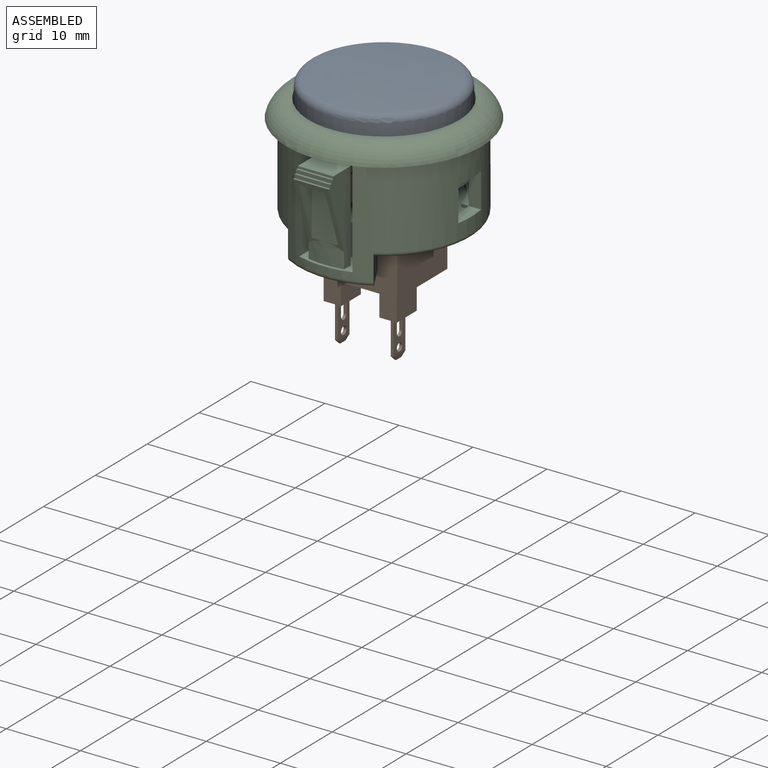
[diagram: assembled view]
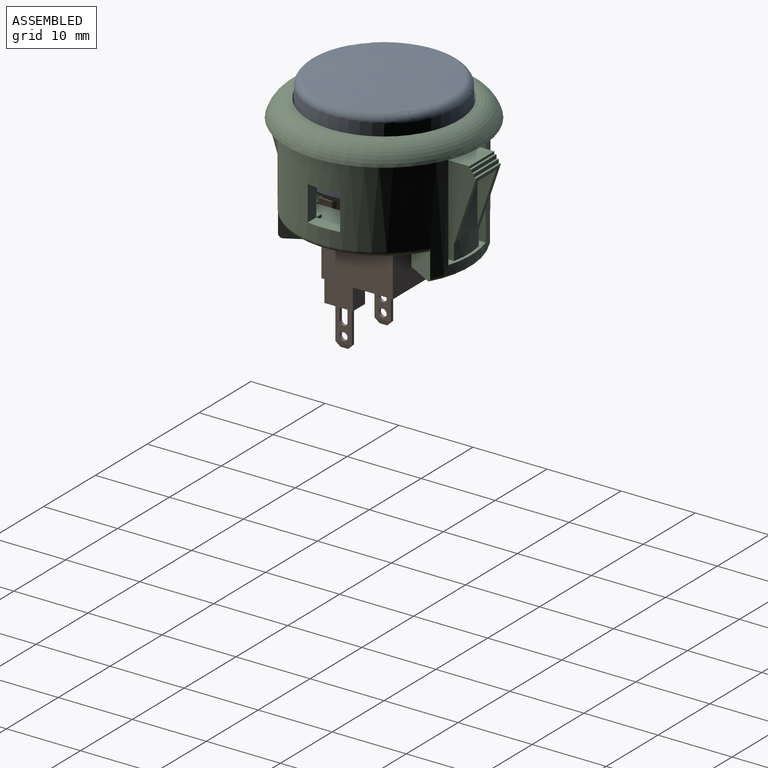
[diagram: assembled view, second angle]
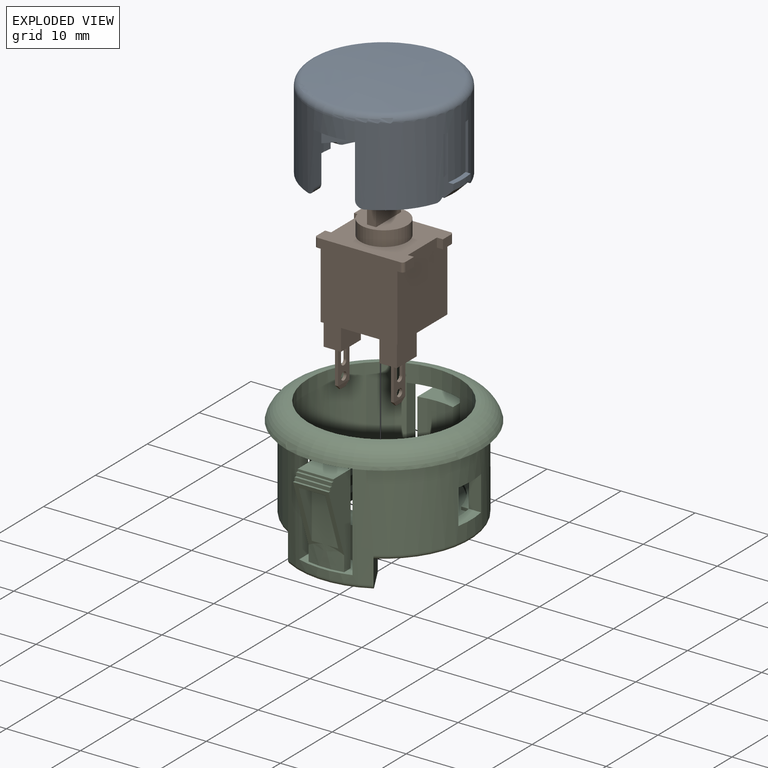
[diagram: exploded view]
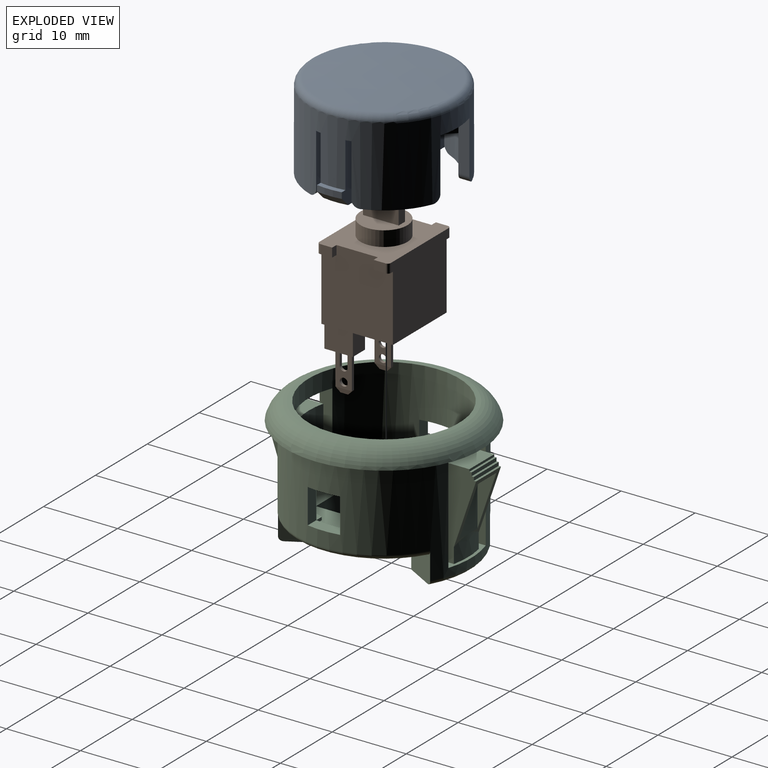
[diagram: exploded view, second angle]
ASSEMBLY  parts=3 mates=2
PART A: 68 faces, bbox 21.6x21.6x12.1 mm
  f0: sphere r=88.64mm, area 258.8mm2, adj f1
  f1: torus R=8.96mm, axis (0,0,-1), area 90.4mm2, adj f0,f2
  f2: cylinder r=9.98mm len=19.95mm, axis (0,0,-1), area 532.9mm2, adj f1,f20,f21,f23,f25,f26,f27,f28
  f3: cylinder r=8.55mm len=17.11mm, axis (0,0,-1), area 421.3mm2, adj f4,f5,f6,f7,f8,f9,f10,f11
  f4: plane 11.51x6.66mm, normal (0,0,-1), area 45.8mm2, adj f3,f8,f9,f50,f51,f52
  f5: plane 11.51x7.23mm, normal (0,0,-1), area 50.1mm2, adj f3,f10,f11,f51
  f6: plane 11.51x6.66mm, normal (0,0,-1), area 45.8mm2, adj f3,f12,f13,f50,f51,f53
  f7: plane 11.51x7.23mm, normal (0,0,-1), area 50.1mm2, adj f3,f14,f15,f50
  f8: plane 6.1x4.43mm, normal (0.71,0.71,0), area 38.2mm2, adj f3,f4,f16,f50
  f9: plane 6.1x4.43mm, normal (-0.71,0.71,0), area 38.2mm2, adj f3,f4,f19,f51
  f10: plane 6.1x5.01mm, normal (0.71,-0.71,0), area 43.2mm2, adj f3,f5,f19,f51
  f11: plane 6.1x5.01mm, normal (0.71,0.71,0), area 43.2mm2, adj f3,f5,f18,f51
  f12: plane 6.1x4.43mm, normal (-0.71,-0.71,0), area 38.2mm2, adj f3,f6,f18,f51
  f13: plane 6.1x4.43mm, normal (0.71,-0.71,0), area 38.2mm2, adj f3,f6,f17,f50
  f14: plane 6.1x5.01mm, normal (-0.71,0.71,0), area 43.2mm2, adj f3,f7,f17,f50
  f15: plane 6.1x5.01mm, normal (-0.71,-0.71,0), area 43.2mm2, adj f3,f7,f16,f50
  f16: plane 5.58x5.01mm, normal (0,0,-1), area 5.4mm2, adj f3,f8,f15,f50
  f17: plane 5.58x5.01mm, normal (0,0,-1), area 5.4mm2, adj f3,f13,f14,f50
  f18: plane 5.58x5.01mm, normal (0,0,-1), area 5.4mm2, adj f3,f11,f12,f51
  f19: plane 5.58x5.01mm, normal (0,0,-1), area 5.4mm2, adj f3,f9,f10,f51
  f20: plane 5.82x5.57mm, normal (0,0,-1), area 10.2mm2, adj f2,f3,f61,f67
  f21: plane 5.82x5.57mm, normal (0,0,-1), area 10.2mm2, adj f2,f3,f63,f66
  f22: plane 3.35x1.06mm, normal (0,0,-1), area 3mm2, adj f3,f29,f42,f48
  f23: plane 5.82x5.57mm, normal (0,0,-1), area 10.2mm2, adj f2,f3,f60,f64
  f24: plane 3.35x1.06mm, normal (0,0,-1), area 3mm2, adj f3,f27,f38,f49
  f25: plane 5.82x5.57mm, normal (0,0,-1), area 10.2mm2, adj f2,f3,f62,f65
  f26: plane 7.11x1.47mm, normal (0,-1,0), area 10.5mm2, adj f2,f3,f28,f62
  f27: plane 8.14x2.16mm, normal (0,1,0), area 12.4mm2, adj f2,f3,f24,f28,f44,f45,f49
  f28: plane 1.62x0.71mm, normal (0,0,-1), area 1mm2, adj f2,f3,f26,f27
  f29: plane 8.14x2.16mm, normal (0,1,0), area 12.4mm2, adj f2,f3,f22,f31,f46,f47,f48
  f30: plane 7.11x1.47mm, normal (0,-1,0), area 10.5mm2, adj f2,f3,f31,f60
  f31: plane 1.62x0.71mm, normal (0,0,-1), area 1mm2, adj f2,f3,f29,f30
  f32: plane 7.11x1.49mm, normal (-1,0,0), area 10.6mm2, adj f2,f3,f34,f64
  f33: plane 7.11x1.49mm, normal (1,0,0), area 10.6mm2, adj f2,f3,f34,f65
  f34: plane 5.59x1.89mm, normal (0,0,-1), area 8.1mm2, adj f2,f3,f32,f33
  f35: plane 7.11x1.49mm, normal (1,0,0), area 10.6mm2, adj f2,f3,f37,f66
  f36: plane 7.11x1.49mm, normal (-1,0,0), area 10.6mm2, adj f2,f3,f37,f67
  f37: plane 5.59x1.89mm, normal (0,0,-1), area 8.1mm2, adj f2,f3,f35,f36
  f38: plane 8.14x2.16mm, normal (0,-1,0), area 12.4mm2, adj f2,f3,f24,f40,f44,f45,f49
  f39: plane 7.11x1.47mm, normal (0,1,0), area 10.5mm2, adj f2,f3,f40,f63
  f40: plane 1.62x0.71mm, normal (0,0,-1), area 1mm2, adj f2,f3,f38,f39
  f41: plane 1.62x0.71mm, normal (0,0,-1), area 1mm2, adj f2,f3,f42,f43
  f42: plane 8.14x2.16mm, normal (0,-1,0), area 12.4mm2, adj f2,f3,f22,f41,f46,f47,f48
  f43: plane 7.11x1.47mm, normal (0,1,0), area 10.5mm2, adj f2,f3,f41,f61
  f44: cylinder r=10.67mm len=3.35mm, axis (0,0,-1), area 2.7mm2, adj f27,f38,f45,f49
  f45: plane 3.35x0.83mm, normal (0,0,1), area 2.3mm2, adj f2,f27,f38,f44
  f46: cylinder r=10.67mm len=3.35mm, axis (0,0,-1), area 2.7mm2, adj f29,f42,f47,f48
  f47: plane 3.35x0.83mm, normal (0,0,1), area 2.3mm2, adj f2,f29,f42,f46
  f48: cone r=9.45mm half-angle=45deg, axis (0,0,1), area 5.8mm2, adj f22,f29,f42,f46
  f49: cone r=9.45mm half-angle=45deg, axis (0,0,1), area 5.8mm2, adj f24,f27,f38,f44
  f50: plane 10.45x6.16mm, normal (-1,0,0), area 50.3mm2, adj f4,f6,f7,f8,f13,f14,f15,f16
  f51: plane 10.45x6.16mm, normal (1,0,0), area 50.3mm2, adj f4,f5,f6,f9,f10,f11,f12,f18
  f52: plane 10.45x2.64mm, normal (0,1,0), area 27.6mm2, adj f4,f50,f51,f54
  f53: plane 10.45x2.64mm, normal (0,-1,0), area 27.6mm2, adj f6,f50,f51,f54
  f54: plane 6.16x2.64mm, normal (0,0,-1), area 9.2mm2, adj f50,f51,f52,f53,f55,f56,f57,f58
  f55: plane 10.45x4.94mm, normal (-1,0,0), area 51.6mm2, adj f54,f56,f58,f59
  f56: plane 10.45x1.42mm, normal (0,-1,0), area 14.9mm2, adj f54,f55,f57,f59
  f57: plane 10.45x4.94mm, normal (1,0,0), area 51.6mm2, adj f54,f56,f58,f59
  f58: plane 10.45x1.42mm, normal (0,1,0), area 14.9mm2, adj f54,f55,f57,f59
  f59: plane 4.94x1.42mm, normal (0,0,-1), area 7mm2, adj f55,f56,f57,f58
  f60: cylinder r=1.02mm len=1.84mm, axis (-1,0,0), area 2.4mm2, adj f2,f3,f23,f30
  f61: cylinder r=1.02mm len=1.84mm, axis (1,0,0), area 2.4mm2, adj f2,f3,f20,f43
  f62: cylinder r=1.02mm len=1.84mm, axis (-1,0,0), area 2.4mm2, adj f2,f3,f25,f26
  f63: cylinder r=1.02mm len=1.84mm, axis (1,0,0), area 2.4mm2, adj f2,f3,f21,f39
  f64: cylinder r=1.02mm len=1.92mm, axis (0,1,0), area 2.4mm2, adj f2,f3,f23,f32
  f65: cylinder r=1.02mm len=1.92mm, axis (0,-1,0), area 2.4mm2, adj f2,f3,f25,f33
  f66: cylinder r=1.02mm len=1.92mm, axis (0,-1,0), area 2.4mm2, adj f2,f3,f21,f35
  f67: cylinder r=1.02mm len=1.92mm, axis (0,1,0), area 2.4mm2, adj f2,f3,f20,f36
PART B: 136 faces, bbox 12x23.9x9.7 mm
  f0: cylinder r=3.16mm len=6.32mm, axis (0,1,0), area 40.3mm2, adj f5,f6
  f1: cylinder r=0.53mm len=1.06mm, axis (1,0,0), area 1.3mm2, adj f10,f11
  f2: cylinder r=0.53mm len=1.06mm, axis (1,0,0), area 0.7mm2, adj f10,f11,f40,f41
  f3: cylinder r=0.53mm len=1.06mm, axis (-1,0,0), area 1.3mm2, adj f19,f21
  f4: cylinder r=0.53mm len=1.06mm, axis (-1,0,0), area 3.4mm2, adj f19,f21,f24,f26
  f5: plane 6.32x6.32mm, normal (0,-1,0), area 25.5mm2, adj f0,f131,f132,f133,f134
  f6: plane 12.01x9.65mm, normal (0,-1,0), area 75.2mm2, adj f0,f8,f9,f13,f14,f46,f47,f49
  f7: plane 10.36x9.65mm, normal (0,1,0), area 78.5mm2, adj f8,f9,f13,f14,f15,f16,f17,f18
  f8: plane 10.16x9.65mm, normal (-1,0,0), area 93.1mm2, adj f6,f7,f13,f14,f53,f54,f56,f57
  f9: plane 10.16x9.65mm, normal (1,0,0), area 93.1mm2, adj f6,f7,f13,f14,f47,f48,f50,f51
  f10: plane 4.78x2.24mm, normal (1,0,0), area 7.2mm2, adj f1,f2,f35,f36,f37,f39,f40,f41
  f11: plane 4.78x2.24mm, normal (-1,0,0), area 7.2mm2, adj f1,f2,f35,f36,f37,f39,f40,f41
  f12: plane 3.84x2.35mm, normal (0,1,0), area 8.1mm2, adj f15,f16,f17,f18,f19,f20,f21,f22
  f13: plane 11.2x10.16mm, normal (0,0,-1), area 106.3mm2, adj f6,f7,f8,f9,f48,f57,f58,f61
  f14: plane 11.2x10.16mm, normal (0,0,1), area 106.3mm2, adj f6,f7,f8,f9,f51,f54,f59,f60
  f15: plane 3.84x3.05mm, normal (-1,0,0), area 11.7mm2, adj f7,f12,f16,f18
  f16: plane 3.05x2.35mm, normal (0,0,1), area 7.2mm2, adj f7,f12,f15,f17
  f17: plane 3.84x3.05mm, normal (1,0,0), area 11.7mm2, adj f7,f12,f16,f18
  f18: plane 3.05x2.35mm, normal (0,0,-1), area 7.2mm2, adj f7,f12,f15,f17
  f19: plane 4.78x2.24mm, normal (-1,0,0), area 7.2mm2, adj f3,f4,f12,f20,f22,f24,f25,f26
  f20: plane 4.78x0.41mm, normal (0,0,1), area 1.9mm2, adj f12,f19,f21,f28
  f21: plane 4.78x2.24mm, normal (1,0,0), area 7.2mm2, adj f3,f4,f12,f20,f22,f24,f25,f26
  f22: plane 4.78x0.41mm, normal (0,0,-1), area 1.9mm2, adj f12,f19,f21,f27
  f23: plane 1.02x0.19mm, normal (0,1,0), area 0.2mm2, adj f27,f28,f29,f30
  f24: plane 1.59x0.41mm, normal (0,0,1), area 0.6mm2, adj f4,f19,f21,f25
  f25: cylinder r=0.53mm len=1.06mm, axis (-1,0,0), area 0.7mm2, adj f19,f21,f24,f26
  f26: plane 1.59x0.41mm, normal (0,0,-1), area 0.6mm2, adj f4,f19,f21,f25
  f27: plane 0.61x0.61mm, normal (0,0.71,-0.71), area 0.3mm2, adj f22,f23,f29,f30
  f28: plane 0.61x0.61mm, normal (0,0.71,0.71), area 0.3mm2, adj f20,f23,f29,f30
  f29: plane 2.24x0.61mm, normal (0.98,0.17,0), area 1mm2, adj f21,f23,f27,f28
  f30: plane 2.24x0.61mm, normal (-0.98,0.17,0), area 1mm2, adj f19,f23,f27,f28
  f31: plane 3.84x3.05mm, normal (1,0,0), area 11.7mm2, adj f7,f32,f34,f35
  f32: plane 3.05x2.35mm, normal (0,0,-1), area 7.2mm2, adj f7,f31,f33,f35
  f33: plane 3.84x3.05mm, normal (-1,0,0), area 11.7mm2, adj f7,f32,f34,f35
  f34: plane 3.05x2.35mm, normal (0,0,1), area 7.2mm2, adj f7,f31,f33,f35
  f35: plane 3.84x2.35mm, normal (0,1,0), area 8.1mm2, adj f10,f11,f31,f32,f33,f34,f36,f37
  f36: plane 4.78x0.41mm, normal (0,0,-1), area 1.9mm2, adj f10,f11,f35,f42
  f37: plane 4.78x0.41mm, normal (0,0,1), area 1.9mm2, adj f10,f11,f35,f43
  f38: plane 1.02x0.19mm, normal (0,1,0), area 0.2mm2, adj f42,f43,f44,f45
  f39: cylinder r=0.53mm len=1.06mm, axis (1,0,0), area 3.4mm2, adj f10,f11,f40,f41
  f40: plane 1.59x0.41mm, normal (0,0,-1), area 0.6mm2, adj f2,f10,f11,f39
  f41: plane 1.59x0.41mm, normal (0,0,1), area 0.6mm2, adj f2,f10,f11,f39
  f42: plane 0.61x0.61mm, normal (0,0.71,-0.71), area 0.3mm2, adj f36,f38,f44,f45
  f43: plane 0.61x0.61mm, normal (0,0.71,0.71), area 0.3mm2, adj f37,f38,f44,f45
  f44: plane 2.24x0.61mm, normal (-0.98,0.17,0), area 1mm2, adj f11,f38,f42,f43
  f45: plane 2.24x0.61mm, normal (0.98,0.17,0), area 1mm2, adj f10,f38,f42,f43
  f46: plane 1.63x1.22mm, normal (1,0,0), area 2mm2, adj f6,f47,f48,f61
  f47: plane 1.22x0.82mm, normal (0,0,1), area 1mm2, adj f6,f9,f46,f48
  f48: plane 2.03x0.82mm, normal (0,1,0), area 1.6mm2, adj f9,f13,f46,f47,f61
  f49: plane 1.63x1.22mm, normal (1,0,0), area 2mm2, adj f6,f50,f51,f60
  f50: plane 1.22x0.82mm, normal (0,0,-1), area 1mm2, adj f6,f9,f49,f51
  f51: plane 2.03x0.82mm, normal (0,1,0), area 1.6mm2, adj f9,f14,f49,f50,f60
  f52: plane 1.63x1.22mm, normal (-1,0,0), area 2mm2, adj f6,f53,f54,f59
  f53: plane 1.22x0.82mm, normal (0,0,-1), area 1mm2, adj f6,f8,f52,f54
  f54: plane 2.03x0.82mm, normal (0,1,0), area 1.6mm2, adj f8,f14,f52,f53,f59
  f55: plane 1.63x1.22mm, normal (-1,0,0), area 2mm2, adj f6,f56,f57,f58
  f56: plane 1.22x0.82mm, normal (0,0,1), area 1mm2, adj f6,f8,f55,f57
  f57: plane 2.03x0.82mm, normal (0,1,0), area 1.6mm2, adj f8,f13,f55,f56,f58
  f58: cylinder r=0.41mm len=1.22mm, axis (0,1,0), area 0.8mm2, adj f6,f13,f55,f57
  f59: cylinder r=0.41mm len=1.22mm, axis (0,1,0), area 0.8mm2, adj f6,f14,f52,f54
  f60: cylinder r=0.41mm len=1.22mm, axis (0,-1,0), area 0.8mm2, adj f6,f14,f49,f51
  f61: cylinder r=0.41mm len=1.22mm, axis (0,-1,0), area 0.8mm2, adj f6,f13,f46,f48
  f62: extruded ~0.49x0.36mm, area 0.1mm2, adj f7,f63,f78,f79
  f63: extruded ~0.46x0.44mm, area 0.1mm2, adj f7,f62,f64,f79
  f64: extruded ~0.52x0.38mm, area 0.1mm2, adj f7,f63,f65,f79
  f65: extruded ~0.22x0.2mm, area 0.1mm2, adj f7,f64,f66,f79
  f66: extruded ~0.21x0.2mm, area 0mm2, adj f7,f65,f67,f79
  f67: extruded ~0.24x0.21mm, area 0.1mm2, adj f7,f66,f68,f79
  f68: extruded ~0.32x0.21mm, area 0.1mm2, adj f7,f67,f69,f79
  f69: plane 0.2x0.13mm, normal (-0.6,0,-0.8), area 0mm2, adj f7,f68,f70,f79
  f70: extruded ~0.43x0.28mm, area 0.1mm2, adj f7,f69,f71,f79
  f71: extruded ~0.4x0.38mm, area 0.1mm2, adj f7,f70,f72,f79
  f72: extruded ~0.25x0.2mm, area 0.1mm2, adj f7,f71,f73,f79
  f73: extruded ~0.27x0.22mm, area 0.1mm2, adj f7,f72,f74,f79
  f74: extruded ~0.29x0.26mm, area 0.1mm2, adj f7,f73,f75,f79
  f75: extruded ~0.2x0.16mm, area 0mm2, adj f7,f74,f76,f79
  f76: extruded ~0.32x0.28mm, area 0.1mm2, adj f7,f75,f77,f79
  f77: extruded ~0.36x0.27mm, area 0.1mm2, adj f7,f76,f78,f79
  f78: plane 0.2x0.14mm, normal (0.51,0,0.86), area 0mm2, adj f7,f62,f77,f79
  f79: plane 1.71x0.96mm, normal (0,1,0), area 0.5mm2, adj f62,f63,f64,f65,f66,f67,f68,f69
  f80: plane 1.63x1.54mm, normal (0,1,0), area 0.6mm2, adj f81,f82,f83,f84,f85,f86,f87,f88
  f81: plane 0.2x0.02mm, normal (0,0,1), area 0mm2, adj f7,f80,f82,f88
  f82: plane 1.63x0.77mm, normal (0.9,0,0.43), area 0.4mm2, adj f7,f80,f81,f83
  f83: plane 0.2x0.16mm, normal (0,0,-1), area 0mm2, adj f7,f80,f82,f84
  f84: plane 0.52x0.25mm, normal (-0.9,0,-0.43), area 0.1mm2, adj f7,f80,f83,f85
  f85: plane 0.74x0.2mm, normal (0,0,-1), area 0.1mm2, adj f7,f80,f84,f86
  f86: plane 0.52x0.24mm, normal (0.91,0,-0.42), area 0.1mm2, adj f7,f80,f85,f87
  f87: plane 0.2x0.16mm, normal (0,0,-1), area 0mm2, adj f7,f80,f86,f88
  f88: plane 1.63x0.75mm, normal (-0.91,0,0.42), area 0.4mm2, adj f7,f80,f81,f87
  f89: plane 0.62x0.29mm, normal (0.91,0,-0.42), area 0.1mm2, adj f80,f90,f91,f92
  f90: plane 0.62x0.29mm, normal (-0.9,0,-0.43), area 0.1mm2, adj f80,f89,f91,f92
  f91: plane 0.58x0.2mm, normal (0,0,1), area 0.1mm2, adj f80,f89,f90,f92
  f92: plane 0.62x0.58mm, normal (0,1,0), area 0.2mm2, adj f89,f90,f91
  f93: plane 0.2x0.15mm, normal (0,0,-1), area 0mm2, adj f7,f94,f102,f103
  f94: plane 1.28x0.2mm, normal (-1,0,0), area 0.3mm2, adj f7,f93,f95,f103
  f95: plane 1.28x1.07mm, normal (0.77,0,-0.64), area 0.3mm2, adj f7,f94,f96,f103
  f96: plane 0.2x0.03mm, normal (0,0,-1), area 0mm2, adj f7,f95,f97,f103
  f97: plane 1.63x0.2mm, normal (-1,0,0), area 0.3mm2, adj f7,f96,f98,f103
  f98: plane 0.2x0.15mm, normal (0,0,1), area 0mm2, adj f7,f97,f99,f103
  f99: plane 1.28x0.2mm, normal (1,0,0), area 0.3mm2, adj f7,f98,f100,f103
  f100: plane 1.28x1.07mm, normal (-0.77,0,0.64), area 0.3mm2, adj f7,f99,f101,f103
  f101: plane 0.2x0.03mm, normal (0,0,1), area 0mm2, adj f7,f100,f102,f103
  f102: plane 1.63x0.2mm, normal (1,0,0), area 0.3mm2, adj f7,f93,f101,f103
  f103: plane 1.63x1.25mm, normal (0,1,0), area 0.7mm2, adj f93,f94,f95,f96,f97,f98,f99,f100
  f104: plane 1.63x0.43mm, normal (0.97,0,-0.26), area 0.3mm2, adj f7,f105,f116,f117
  f105: plane 0.2x0.02mm, normal (0,0,-1), area 0mm2, adj f7,f104,f106,f117
  f106: plane 1.24x0.5mm, normal (-0.93,0,-0.37), area 0.3mm2, adj f7,f105,f107,f117
  f107: plane 1.24x0.49mm, normal (0.93,0,-0.37), area 0.3mm2, adj f7,f106,f108,f117
  f108: plane 0.2x0.02mm, normal (0,0,-1), area 0mm2, adj f7,f107,f109,f117
  f109: plane 1.63x0.44mm, normal (-0.97,0,-0.26), area 0.3mm2, adj f7,f108,f110,f117
  f110: plane 0.2x0.15mm, normal (0,0,1), area 0mm2, adj f7,f109,f111,f117
  f111: plane 1.18x0.32mm, normal (0.97,0,0.26), area 0.2mm2, adj f7,f110,f112,f117
  f112: plane 1.18x0.46mm, normal (-0.93,0,0.37), area 0.3mm2, adj f7,f111,f113,f117
  f113: plane 0.2x0.02mm, normal (0,0,1), area 0mm2, adj f7,f112,f114,f117
  f114: plane 1.19x0.47mm, normal (0.93,0,0.37), area 0.3mm2, adj f7,f113,f115,f117
  f115: plane 1.19x0.32mm, normal (-0.97,0,0.26), area 0.3mm2, adj f7,f114,f116,f117
  f116: plane 0.2x0.15mm, normal (0,0,1), area 0mm2, adj f7,f104,f115,f117
  f117: plane 1.9x1.63mm, normal (0,1,0), area 0.8mm2, adj f104,f105,f106,f107,f108,f109,f110,f111
  f118: plane 1.63x1.54mm, normal (0,1,0), area 0.6mm2, adj f119,f120,f121,f122,f123,f124,f125,f126
  f119: plane 0.2x0.02mm, normal (0,0,1), area 0mm2, adj f7,f118,f120,f126
  f120: plane 1.63x0.77mm, normal (0.9,0,0.43), area 0.4mm2, adj f7,f118,f119,f121
  f121: plane 0.2x0.16mm, normal (0,0,-1), area 0mm2, adj f7,f118,f120,f122
  f122: plane 0.52x0.25mm, normal (-0.9,0,-0.43), area 0.1mm2, adj f7,f118,f121,f123
  f123: plane 0.74x0.2mm, normal (0,0,-1), area 0.1mm2, adj f7,f118,f122,f124
  f124: plane 0.52x0.24mm, normal (0.91,0,-0.42), area 0.1mm2, adj f7,f118,f123,f125
  f125: plane 0.2x0.16mm, normal (0,0,-1), area 0mm2, adj f7,f118,f124,f126
  f126: plane 1.63x0.75mm, normal (-0.91,0,0.42), area 0.4mm2, adj f7,f118,f119,f125
  f127: plane 0.62x0.29mm, normal (0.91,0,-0.42), area 0.1mm2, adj f118,f128,f129,f130
  f128: plane 0.62x0.29mm, normal (-0.9,0,-0.43), area 0.1mm2, adj f118,f127,f129,f130
  f129: plane 0.58x0.2mm, normal (0,0,1), area 0.1mm2, adj f118,f127,f128,f130
  f130: plane 0.62x0.58mm, normal (0,1,0), area 0.2mm2, adj f127,f128,f129
  f131: plane 4.82x3.25mm, normal (1,0,0), area 15.7mm2, adj f5,f132,f134,f135
  f132: plane 3.25x1.22mm, normal (0,0,1), area 4mm2, adj f5,f131,f133,f135
  f133: plane 4.82x3.25mm, normal (-1,0,0), area 15.7mm2, adj f5,f132,f134,f135
  f134: plane 3.25x1.22mm, normal (0,0,-1), area 4mm2, adj f5,f131,f133,f135
  f135: plane 4.82x1.22mm, normal (0,-1,0), area 5.9mm2, adj f131,f132,f133,f134
PART C: 88 faces, bbox 29.1x29.1x18 mm
  f0: torus R=11.18mm, axis (0,0,1), area 23.5mm2, adj f3,f27,f32,f33
  f1: cylinder r=10.16mm len=4.37mm, axis (0,0,1), area 1.8mm2, adj f11,f26,f43,f44
  f2: torus R=10.16mm, axis (0,0,1), area 314.3mm2, adj f4,f24
  f3: cylinder r=11.79mm len=23.57mm, axis (0,0,1), area 662.8mm2, adj f0,f18,f24,f26,f30,f31,f32,f33
  f4: cylinder r=10.16mm len=20.32mm, axis (0,0,1), area 553.1mm2, adj f2,f9,f10,f14,f19,f24,f34,f35
  f5: cylinder r=11.38mm len=4.8mm, axis (0,0,1), area 11.7mm2, adj f7,f8,f72,f74,f84
  f6: cylinder r=10.16mm len=12.13mm, axis (0,0,1), area 58.8mm2, adj f7,f8,f72,f73
  f7: plane 12.13x4.25mm, normal (-1,0,0), area 31.4mm2, adj f5,f6,f72,f73,f74,f75,f76,f77
  f8: plane 12.13x4.25mm, normal (1,0,0), area 31.4mm2, adj f5,f6,f72,f73,f74,f75,f76,f77
  f9: plane 7.32x6.32mm, normal (0,0,1), area 9.4mm2, adj f4,f12,f41,f69
  f10: plane 7.32x6.32mm, normal (0,0,1), area 9.4mm2, adj f4,f13,f44,f70
  f11: plane 20.32x16.81mm, normal (0,0,1), area 135.9mm2, adj f1,f12,f13,f15,f20,f21,f40,f41
  f12: cylinder r=9.14mm len=6.22mm, axis (0,0,1), area 3.4mm2, adj f9,f11,f41,f69
  f13: cylinder r=9.14mm len=6.22mm, axis (0,0,1), area 3.4mm2, adj f10,f11,f44,f70
  f14: plane 7.32x6.32mm, normal (0,0,1), area 9.4mm2, adj f4,f15,f40,f50
  f15: cylinder r=9.14mm len=6.22mm, axis (0,0,1), area 3.4mm2, adj f11,f14,f40,f50
  f16: plane 9.65x1.02mm, normal (-1,0,0), area 9.8mm2, adj f20,f21,f27,f48
  f17: plane 9.65x1.02mm, normal (1,0,0), area 9.8mm2, adj f20,f21,f27,f47
  f18: plane 4.37x1.86mm, normal (0,0,1), area 7.1mm2, adj f3,f34,f36,f42
  f19: plane 7.32x6.32mm, normal (0,0,1), area 9.4mm2, adj f4,f43,f45,f51
  f20: plane 12.5x2.24mm, normal (0,-1,0), area 25.8mm2, adj f11,f16,f17,f27,f46,f47,f48,f49
  f21: plane 12.5x2.24mm, normal (0,1,0), area 25.8mm2, adj f11,f16,f17,f27,f46,f47,f48,f49
  f22: cylinder r=6.96mm len=6.82mm, axis (0,0,1), area 26.1mm2, adj f23,f27,f31,f33
  f23: plane 10.94x5.11mm, normal (0,0,-1), area 39.1mm2, adj f22,f31,f33,f86
  f24: plane 26.42x26.42mm, normal (0,0,-1), area 135.5mm2, adj f2,f3,f4,f50,f51,f69,f70
  f25: cylinder r=10.16mm len=12.13mm, axis (0,0,1), area 58.8mm2, adj f53,f54,f56,f57
  f26: plane 4.37x1.86mm, normal (0,0,1), area 7.1mm2, adj f1,f3,f38,f39
  f27: plane 22.35x19.49mm, normal (0,0,-1), area 214.1mm2, adj f0,f16,f17,f20,f21,f22,f28,f30
  f28: cylinder r=6.96mm len=6.82mm, axis (0,0,1), area 26.1mm2, adj f27,f29,f30,f32
  f29: plane 10.94x5.11mm, normal (0,0,-1), area 39.1mm2, adj f28,f30,f32,f85
  f30: plane 4.27x4.21mm, normal (0.87,-0.49,0), area 17.7mm2, adj f3,f27,f28,f29,f85,f87
  f31: plane 4.27x4.21mm, normal (0.87,0.49,0), area 17.7mm2, adj f3,f22,f23,f27,f86,f87
  f32: plane 4.27x4.21mm, normal (-0.87,-0.49,0), area 17.7mm2, adj f0,f3,f27,f28,f29,f85
  f33: plane 4.27x4.21mm, normal (-0.87,0.49,0), area 17.7mm2, adj f0,f3,f22,f23,f27,f86
  f34: plane 4.67x1.66mm, normal (0,-1,0), area 7.8mm2, adj f3,f4,f18,f35
  f35: plane 4.37x1.86mm, normal (0,0,-1), area 7.1mm2, adj f3,f4,f34,f36
  f36: plane 4.67x1.66mm, normal (0,1,0), area 7.8mm2, adj f3,f4,f18,f35
  f37: plane 4.37x1.86mm, normal (0,0,-1), area 7.1mm2, adj f3,f4,f38,f39
  f38: plane 4.67x1.66mm, normal (0,1,0), area 7.8mm2, adj f3,f4,f26,f37
  f39: plane 4.67x1.66mm, normal (0,-1,0), area 7.8mm2, adj f3,f4,f26,f37
  f40: plane 1.04x0.41mm, normal (0,1,0), area 0.4mm2, adj f11,f14,f15,f42
  f41: plane 1.04x0.41mm, normal (0,-1,0), area 0.4mm2, adj f9,f11,f12,f42
  f42: cylinder r=10.16mm len=4.37mm, axis (0,0,1), area 1.8mm2, adj f11,f18,f40,f41
  f43: plane 1.04x0.41mm, normal (0,1,0), area 0.4mm2, adj f1,f11,f19,f45
  f44: plane 1.04x0.41mm, normal (0,-1,0), area 0.4mm2, adj f1,f10,f11,f13
  f45: cylinder r=9.14mm len=6.22mm, axis (0,0,1), area 3.4mm2, adj f11,f19,f43,f51
  f46: plane 9.65x1.22mm, normal (1,0,0), area 11.8mm2, adj f11,f20,f21,f47
  f47: plane 9.65x1.07mm, normal (0,0,1), area 10.3mm2, adj f17,f20,f21,f46
  f48: plane 9.65x1.07mm, normal (0,0,1), area 10.3mm2, adj f16,f20,f21,f49
  f49: plane 9.65x1.22mm, normal (-1,0,0), area 11.8mm2, adj f11,f20,f21,f48
  f50: plane 13.65x3.94mm, normal (-1,0,0), area 33.4mm2, adj f3,f4,f11,f14,f15,f24,f52,f56
  f51: plane 13.65x3.94mm, normal (1,0,0), area 33.4mm2, adj f3,f4,f11,f19,f24,f45,f52,f56
  f52: cylinder r=8.13mm len=7.2mm, axis (0,0,1), area 31.8mm2, adj f11,f50,f51,f56
  f53: plane 12.13x4.25mm, normal (1,0,0), area 31.4mm2, adj f25,f55,f56,f57,f58,f59,f60,f61
  f54: plane 12.13x4.25mm, normal (-1,0,0), area 31.4mm2, adj f25,f55,f56,f57,f58,f59,f60,f61
  f55: cylinder r=11.38mm len=4.8mm, axis (0,0,1), area 11.7mm2, adj f53,f54,f56,f64,f68
  f56: plane 7.2x4.5mm, normal (0,0,1), area 21.1mm2, adj f3,f25,f50,f51,f52,f53,f54,f55
  f57: plane 4.8x3.33mm, normal (0,0,1), area 15.1mm2, adj f25,f53,f54,f58
  f58: plane 4.8x0.31mm, normal (0,-1,0), area 1.5mm2, adj f53,f54,f57,f59
  f59: plane 4.8x0.3mm, normal (0,0,1), area 1.5mm2, adj f53,f54,f58,f60
  f60: plane 4.8x0.47mm, normal (0,-1,0), area 2.3mm2, adj f53,f54,f59,f61
  f61: plane 4.8x0.3mm, normal (0,0,1), area 1.5mm2, adj f53,f54,f60,f62
  f62: plane 4.8x0.47mm, normal (0,-1,0), area 2.3mm2, adj f53,f54,f61,f63
  f63: plane 4.8x0.3mm, normal (0,0,1), area 1.5mm2, adj f53,f54,f62,f64
  f64: plane 9.13x5.12mm, normal (0,-0.95,-0.32), area 13.9mm2, adj f53,f54,f55,f63,f65,f66,f67,f68
  f65: plane 3.58x2.54mm, normal (0,0,-1), area 9.1mm2, adj f64,f66,f67,f68
  f66: plane 7.45x2.54mm, normal (-1,0,0), area 9.4mm2, adj f64,f65,f68
  f67: plane 7.45x2.54mm, normal (1,0,0), area 9.4mm2, adj f64,f65,f68
  f68: plane 8.2x3.58mm, normal (0,-1,0), area 27mm2, adj f55,f64,f65,f66,f67
  f69: plane 13.65x3.94mm, normal (-1,0,0), area 33.4mm2, adj f3,f4,f9,f11,f12,f24,f71,f72
  f70: plane 13.65x3.94mm, normal (1,0,0), area 33.4mm2, adj f3,f4,f10,f11,f13,f24,f71,f72
  f71: cylinder r=8.13mm len=7.2mm, axis (0,0,1), area 31.8mm2, adj f11,f69,f70,f72
  f72: plane 7.2x4.5mm, normal (0,0,1), area 21.1mm2, adj f3,f5,f6,f7,f8,f69,f70,f71
  f73: plane 4.8x3.33mm, normal (0,0,1), area 15.1mm2, adj f6,f7,f8,f80
  f74: plane 9.13x5.12mm, normal (0,0.95,-0.32), area 13.9mm2, adj f5,f7,f8,f75,f81,f82,f83,f84
  f75: plane 4.8x0.3mm, normal (0,0,1), area 1.5mm2, adj f7,f8,f74,f76
  f76: plane 4.8x0.47mm, normal (0,1,0), area 2.3mm2, adj f7,f8,f75,f77
  f77: plane 4.8x0.3mm, normal (0,0,1), area 1.5mm2, adj f7,f8,f76,f78
  f78: plane 4.8x0.47mm, normal (0,1,0), area 2.3mm2, adj f7,f8,f77,f79
  f79: plane 4.8x0.3mm, normal (0,0,1), area 1.5mm2, adj f7,f8,f78,f80
  f80: plane 4.8x0.31mm, normal (0,1,0), area 1.5mm2, adj f7,f8,f73,f79
  f81: plane 3.58x2.54mm, normal (0,0,-1), area 9.1mm2, adj f74,f82,f83,f84
  f82: plane 7.45x2.54mm, normal (1,0,0), area 9.4mm2, adj f74,f81,f84
  f83: plane 7.45x2.54mm, normal (-1,0,0), area 9.4mm2, adj f74,f81,f84
  f84: plane 8.2x3.58mm, normal (0,1,0), area 27mm2, adj f5,f74,f81,f82,f83
  f85: torus R=11.18mm, axis (0,0,1), area 11.3mm2, adj f3,f29,f30,f32
  f86: torus R=11.18mm, axis (0,0,1), area 11.3mm2, adj f3,f23,f31,f33
  f87: torus R=11.18mm, axis (0,0,1), area 23.5mm2, adj f3,f27,f30,f31
PLACE A t=(0,0,-4.37)mm
PLACE B rot(axis=(-1,0,0),90deg) t=(0,0,8.16)mm
PLACE C t=(0,0,-4.9)mm
MATE fastened B.f0 <-> A.f1  axis (0,0,1) through (0,0,-11.65)mm
MATE fastened C.f2 <-> A.f1  axis (0,0,1) through (0,0,-2.5)mm
